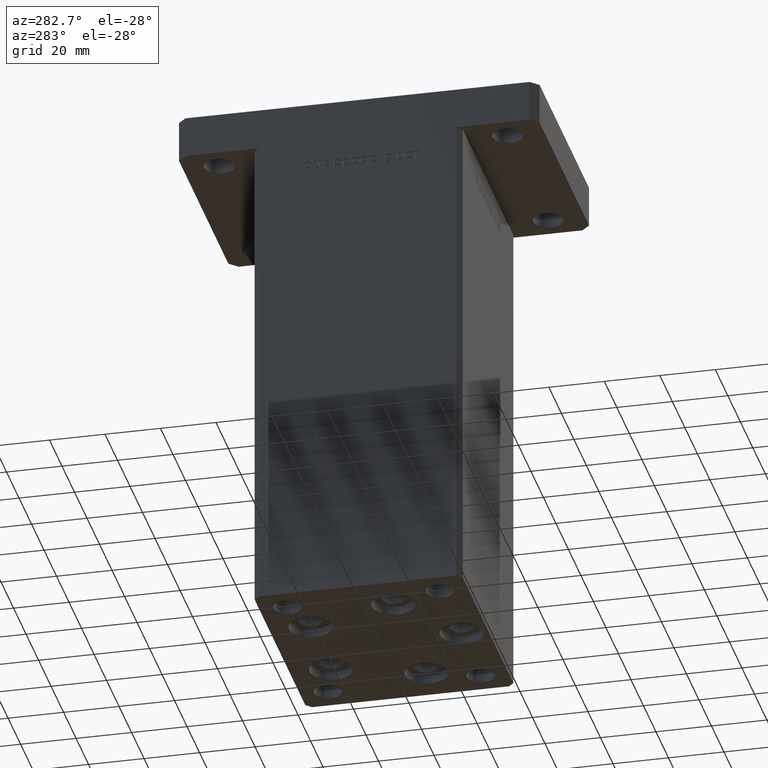
[diagram: clean part render]
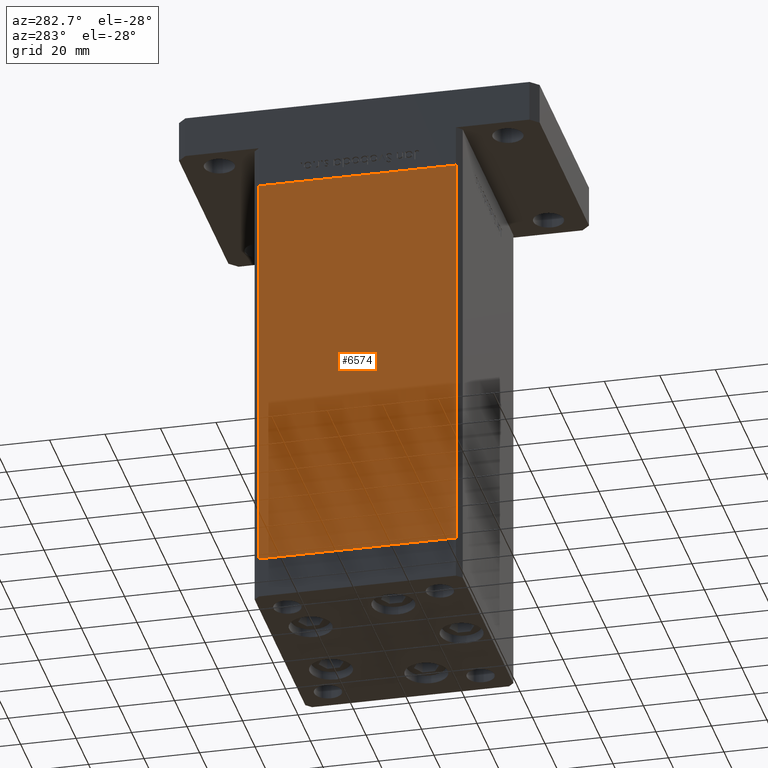
[diagram: same view with one face highlighted and labeled with its STEP entity id]
A machine part, auxiliary view. The second image highlights one B-rep face of the part: STEP entity #6574.
In plain terms, the highlighted planar face has unit normal (1, 0, 0).
Its self-contained STEP definition (entity closure, byte-faithful):
#379 = LINE ( 'NONE', #13334, #37372 ) ;
#634 = EDGE_CURVE ( 'NONE', #16497, #25440, #1001, .T. ) ;
#1001 = LINE ( 'NONE', #13417, #44209 ) ;
#1842 = VERTEX_POINT ( 'NONE', #38089 ) ;
#3099 = DIRECTION ( 'NONE',  ( 2.931927001650941360E-16, -1.000000000000000000, 0.000000000000000000 ) ) ;
#3174 = CARTESIAN_POINT ( 'NONE',  ( -42.50000000000000711, 35.50000000000001421, 148.5000000000000000 ) ) ;
#3682 = EDGE_CURVE ( 'NONE', #1842, #25440, #46312, .T. ) ;
#4062 = DIRECTION ( 'NONE',  ( 1.000000000000000000, 2.931927001650941360E-16, -0.000000000000000000 ) ) ;
#6574 = ADVANCED_FACE ( 'NONE', ( #45023 ), #49371, .F. ) ;
#11254 = CARTESIAN_POINT ( 'NONE',  ( -42.50000000000000711, 35.50000000000001421, 0.000000000000000000 ) ) ;
#12181 = CARTESIAN_POINT ( 'NONE',  ( -42.50000000000000711, 35.50000000000001421, 148.5000000000000000 ) ) ;
#13334 = CARTESIAN_POINT ( 'NONE',  ( -42.50000000000000711, 35.50000000000001421, 148.5000000000000000 ) ) ;
#13417 = CARTESIAN_POINT ( 'NONE',  ( -42.50000000000000711, 35.50000000000001421, 0.000000000000000000 ) ) ;
#13748 = VECTOR ( 'NONE', #39538, 1000.000000000000000 ) ;
#14904 = AXIS2_PLACEMENT_3D ( 'NONE', #12181, #4062, #20578 ) ;
#16497 = VERTEX_POINT ( 'NONE', #11254 ) ;
#16857 = DIRECTION ( 'NONE',  ( -0.000000000000000000, -0.000000000000000000, -1.000000000000000000 ) ) ;
#20578 = DIRECTION ( 'NONE',  ( -2.931927001650941360E-16, 1.000000000000000000, 0.000000000000000000 ) ) ;
#22678 = CARTESIAN_POINT ( 'NONE',  ( -42.49999999999998579, -35.50000000000000711, 0.000000000000000000 ) ) ;
#25440 = VERTEX_POINT ( 'NONE', #22678 ) ;
#25515 = ORIENTED_EDGE ( 'NONE', *, *, #3682, .F. ) ;
#31812 = EDGE_CURVE ( 'NONE', #31905, #1842, #35456, .T. ) ;
#31905 = VERTEX_POINT ( 'NONE', #40885 ) ;
#32587 = ORIENTED_EDGE ( 'NONE', *, *, #634, .T. ) ;
#35456 = LINE ( 'NONE', #3174, #13748 ) ;
#35895 = ORIENTED_EDGE ( 'NONE', *, *, #36966, .T. ) ;
#36966 = EDGE_CURVE ( 'NONE', #31905, #16497, #379, .T. ) ;
#37372 = VECTOR ( 'NONE', #16857, 1000.000000000000000 ) ;
#38089 = CARTESIAN_POINT ( 'NONE',  ( -42.49999999999998579, -35.50000000000000711, 148.5000000000000000 ) ) ;
#39538 = DIRECTION ( 'NONE',  ( 2.931927001650941360E-16, -1.000000000000000000, 0.000000000000000000 ) ) ;
#40885 = CARTESIAN_POINT ( 'NONE',  ( -42.50000000000000711, 35.50000000000001421, 148.5000000000000000 ) ) ;
#42765 = CARTESIAN_POINT ( 'NONE',  ( -42.49999999999998579, -35.50000000000000711, 148.5000000000000000 ) ) ;
#44209 = VECTOR ( 'NONE', #3099, 1000.000000000000000 ) ;
#45023 = FACE_OUTER_BOUND ( 'NONE', #47977, .T. ) ;
#46312 = LINE ( 'NONE', #42765, #49521 ) ;
#47098 = DIRECTION ( 'NONE',  ( -0.000000000000000000, -0.000000000000000000, -1.000000000000000000 ) ) ;
#47977 = EDGE_LOOP ( 'NONE', ( #32587, #25515, #51388, #35895 ) ) ;
#49371 = PLANE ( 'NONE',  #14904 ) ;
#49521 = VECTOR ( 'NONE', #47098, 1000.000000000000000 ) ;
#51388 = ORIENTED_EDGE ( 'NONE', *, *, #31812, .F. ) ;